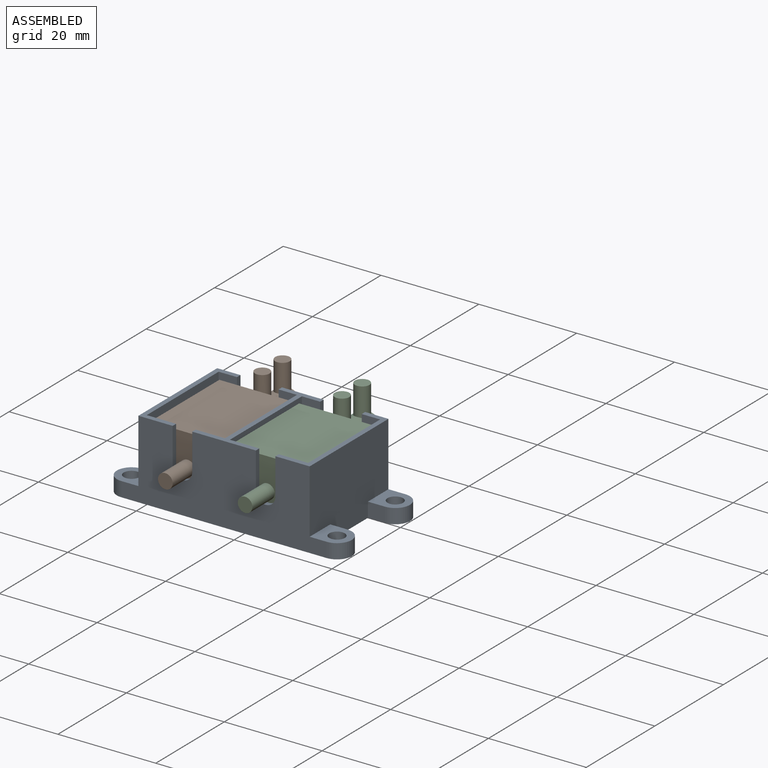
[diagram: assembled view]
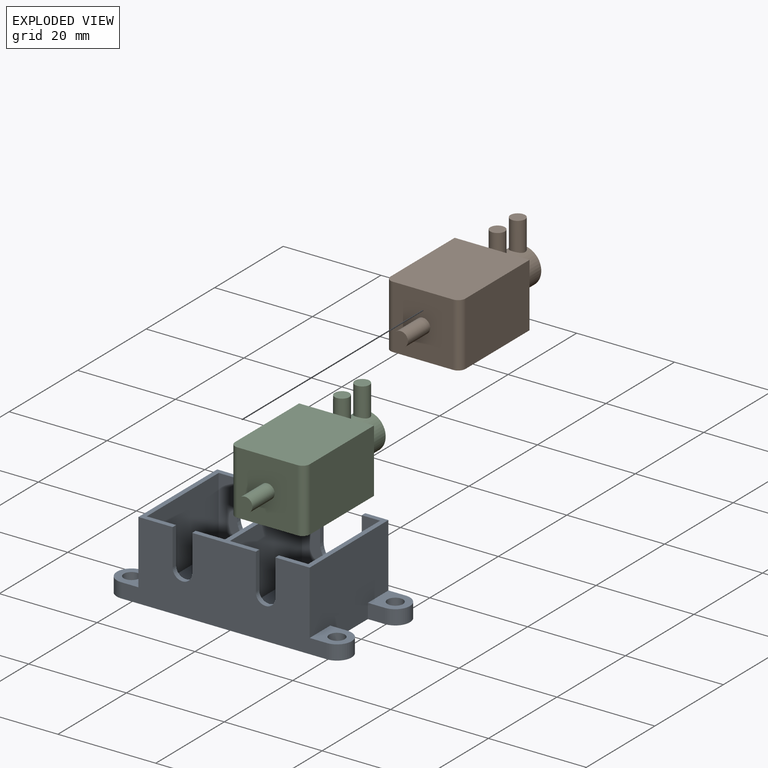
[diagram: exploded view]
GUIDED TOUR — MATED ASSEMBLY (Onshape document 6b5c977ac92050d050ab6953, AutoMate assembly 6b5c977ac92050d050ab6953_eeaec7f965c6bea017af9100_7a6b925c49f4ad419fed44dc_default)

This assembly has 3 components, labeled P0..P2 below (a component is one placed occurrence of a part; the same part can appear more than once), held together by 6 mates. A mate is a constraint between two components; its type names the relative motion it leaves free:
  PLANAR — leaves sliding in the plane through the listed point (normal = the listed direction) and rotation about that normal free.
Axis/direction vectors are unit vectors and 'through' points are millimeter coordinates, both in the assembly's world frame.

MATES
  1. PLANAR "Planar 5": P1 <-> P0, direction (0.000, -1.000, 0.000) through (-8.15, -10.50, 8.50) mm
  2. PLANAR "Planar 3": P2 <-> P0, direction (0.000, 0.000, -1.000) through (8.15, -0.37, 2.00) mm
  3. PLANAR "Planar 2": P1 <-> P0, direction (1.000, 0.000, 0.000) through (-0.50, 0.35, 8.50) mm
  4. PLANAR "Planar 6": P2 <-> P0, direction (0.000, -1.000, 0.000) through (8.15, -10.50, 8.50) mm
  5. PLANAR "Planar 1": P1 <-> P0, direction (0.000, 0.000, -1.000) through (-8.15, -0.37, 2.00) mm
  6. PLANAR "Planar 4": P2 <-> P0, direction (-1.000, 0.000, 0.000) through (0.50, 0.35, 8.50) mm

ASSEMBLY ORDER
  1. P2 — the base component [order verified]
  2. P1 [order verified]
  3. P0 [order verified]
Order-tag legend:
  [order verified] — this step's position reverses a verified removal order: the component was checked to insert without passing through the ones already placed.

Of the 3 components, 3 carry the full construction recipe — the FeatureScript program that regenerates the part's solid from scratch; the rest are supplied as boundary geometry only.
Each toured component is shown spotlighted twice — in the assembled view, then in the exploded view, where a leader line traces a displaced component back to its assembled socket (saturated green if recipe-attached, orange if geometry-only; every other component desaturated gray) — followed by its recipe or geometry summary and the mates that hold it.
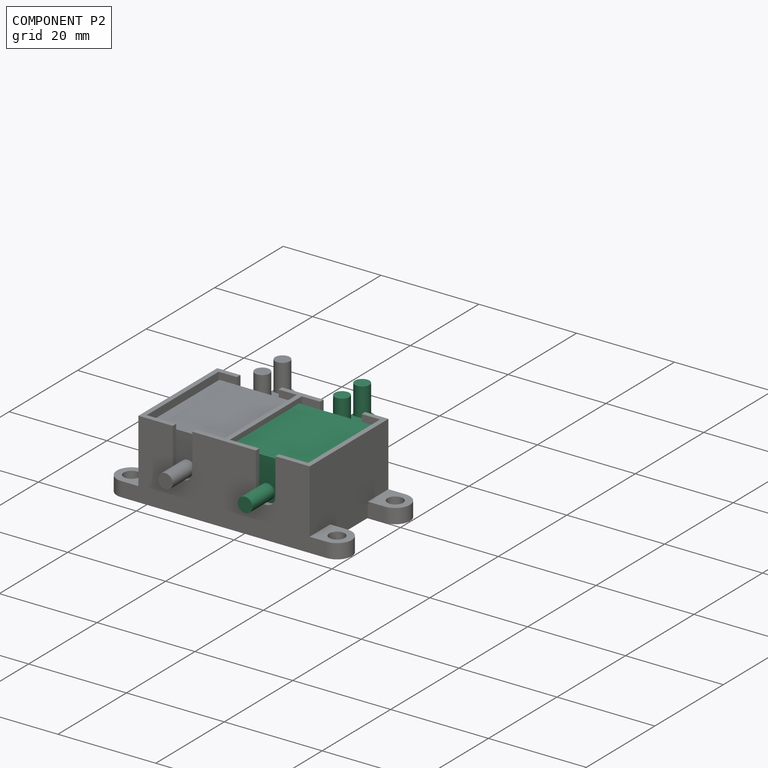
[diagram: component P2 — assembled]
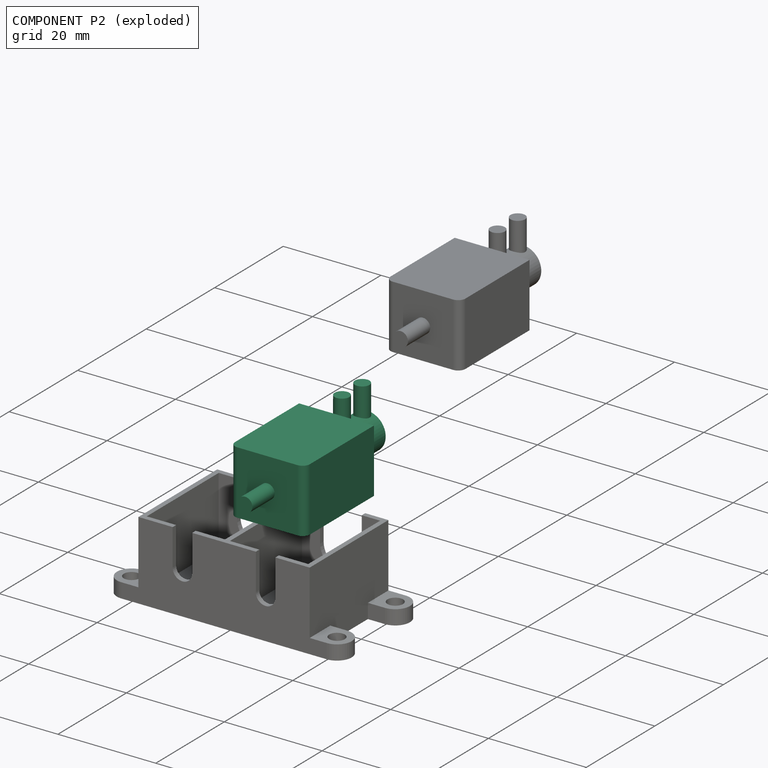
[diagram: component P2 — exploded]
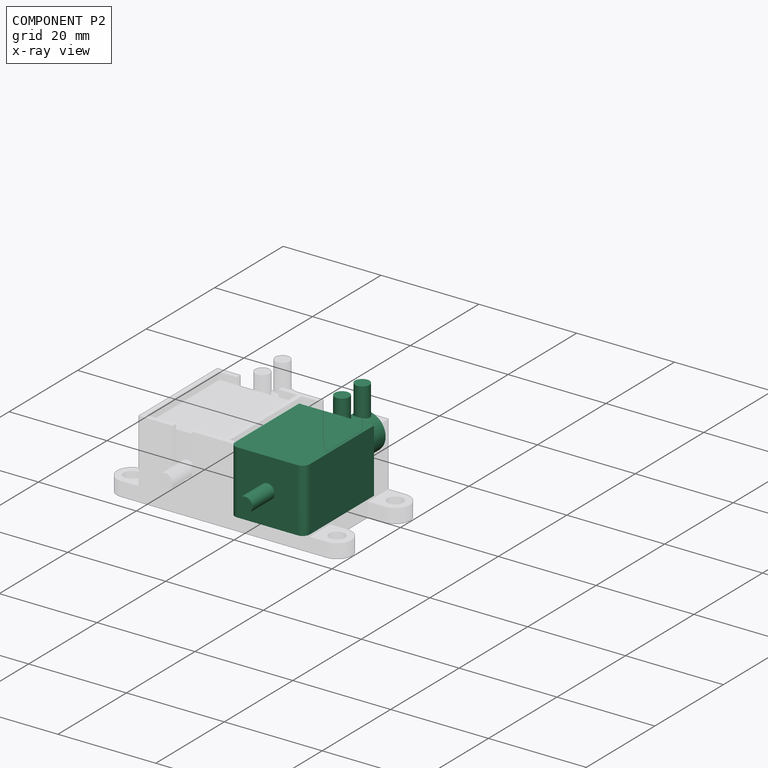
[diagram: component P2 — x-ray view]
COMPONENT P2 — same part as P1 (CADFS 00896327); its construction recipe is shown at P1.
Held by: PLANAR mate "Planar 3" to P0; PLANAR mate "Planar 6" to P0; PLANAR mate "Planar 4" to P0.
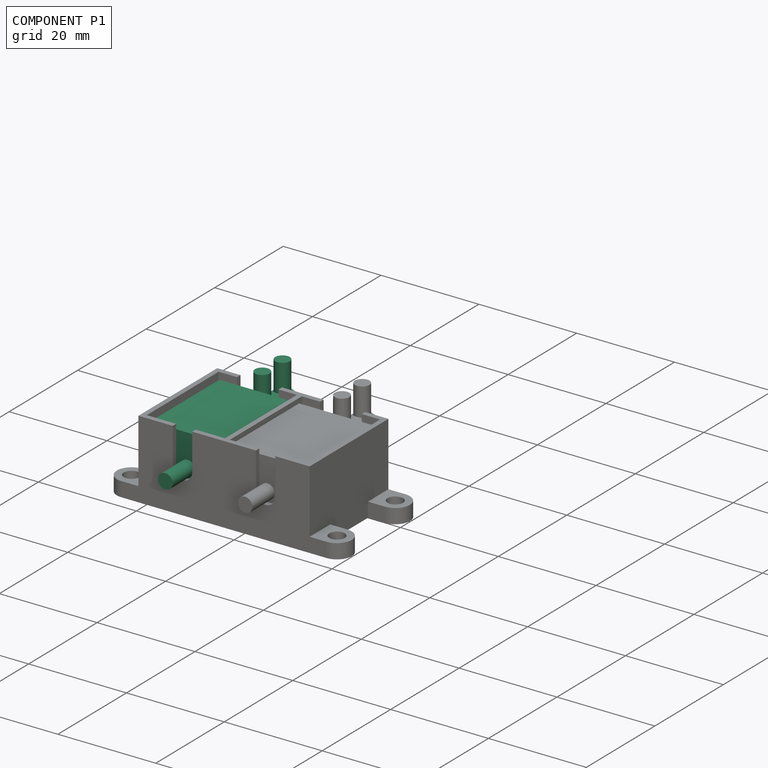
[diagram: component P1 — assembled]
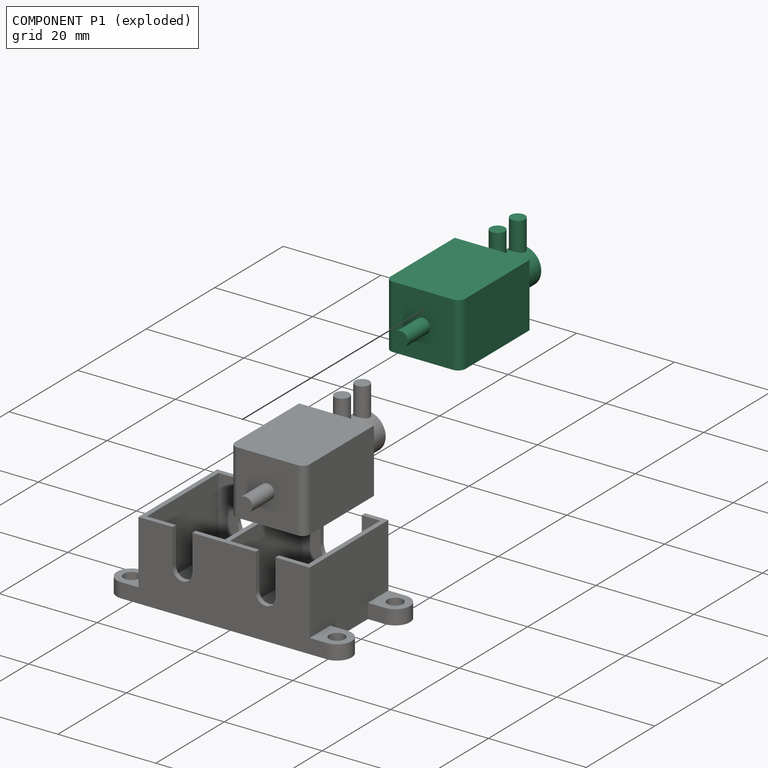
[diagram: component P1 — exploded]
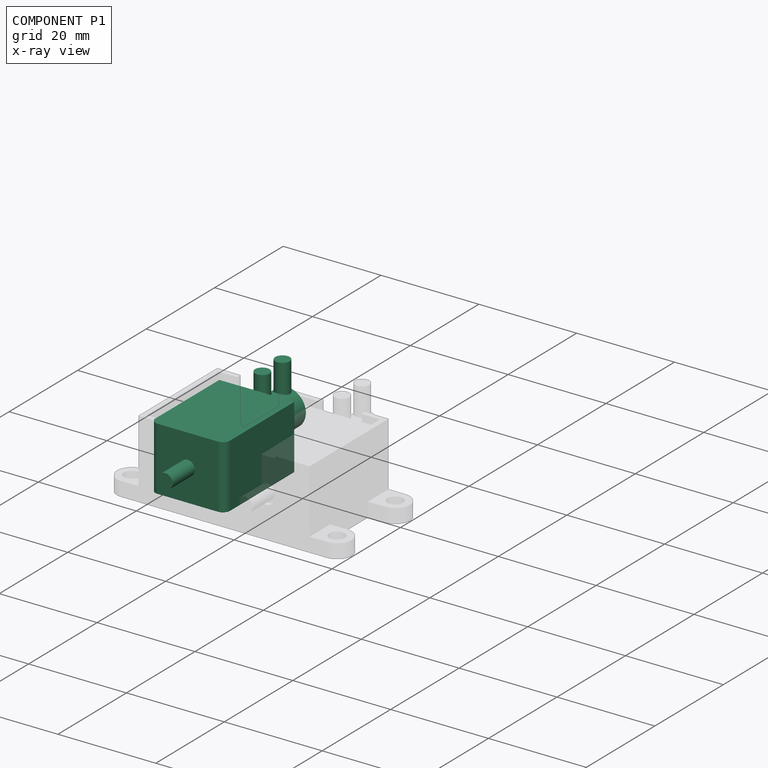
[diagram: component P1 — x-ray view]
COMPONENT P1 — recipe-attached (CADFS 00896327, mesh-verified: the recipe's output STEP matches this component's geometry to below the mesh-comparison resolution (tessellation chordal tolerance ~0.063 mm)).
Held by: PLANAR mate "Planar 5" to P0; PLANAR mate "Planar 2" to P0; PLANAR mate "Planar 1" to P0.
Construction recipe (FeatureScript — the CAD program that rebuilds this solid; sketch coordinates are in the units given by the * unit suffixes, e.g. mm):

FeatureScript 1511;
import(path : "onshape/std/geometry.fs", version : "1511.0");
import(path : "onshape/std/common.fs", version : "1511.0");
const mm = millimeter;
const VERTEX = EntityType.VERTEX;
const EDGE = EntityType.EDGE;
const FACE = EntityType.FACE;
const BODY = EntityType.BODY;
function v(x, y){return vector(x, y);}
function OD(order){return orderDisambiguation(order);}
function OSD(set){return originalSetDisambiguation(set);}
function TD(topology){return topologyDisambiguation(topology);}
function TDD(query){return trueDependencyDisambiguation(query);}
function sQuery(a, b, c) {return sketchEntityQuery(a, b, c);}

annotation { "Feature Type Name" : "Feature", "Feature Type Description" : "" }
export const myFeature = defineFeature(function(context is Context, id is Id, definition is map)
    precondition{}
    {
        {
            var Q0;
            Q0=qCreatedBy(makeId("Top.planeOp"),FACE);
            var sketch = newSketch(context, id + "F0", { "sketchPlane" : qUnion([Q0])});
            skLineSegment(sketch, "E0.bottom", {"start": v(-10.1, 7.65) * mm, "end": v(10.1, 7.65) * mm});
            skLineSegment(sketch, "E0.top", {"start": v(-10.1, -7.65) * mm, "end": v(10.1, -7.65) * mm});
            skLineSegment(sketch, "E0.left", {"start": v(-10.1, 7.65) * mm, "end": v(-10.1, -7.65) * mm});
            skLineSegment(sketch, "E0.right", {"start": v(10.1, 7.65) * mm, "end": v(10.1, -7.65) * mm});
            skSolve(sketch);
        }
        {
            var Q0;
            Q0 = qSketchRegion(id + "F0", true);
            extrude(context, id + "F1", {"entities" : qUnion([Q0]), "depth" : 13 * mm, "offsetDistance" : 25 * mm});
        }
        {
            var Q0;
            Q0=makeQuery(id+"F1.opExtrude","SWEPT_EDGE",EDGE,{"disambiguationData":[OSD([sQuery(id+"F0.wireOp",EDGE,"E0.top"),sQuery(id+"F0.wireOp",EDGE,"E0.right")])]});
            var Q1;
            Q1=makeQuery(id+"F1.opExtrude","SWEPT_EDGE",EDGE,{"disambiguationData":[OSD([sQuery(id+"F0.wireOp",EDGE,"E0.bottom"),sQuery(id+"F0.wireOp",EDGE,"E0.right")])]});
            fillet(context, id + "F2", {"entities" : qUnion([Q0, Q1]), "radius" : 1.5 * mm, "tangentPropagation" : true, "allowEdgeOverflow" : false});
        }
        {
            var Q0;
            Q0=makeQuery(id+"F1.opExtrude","SWEPT_FACE",FACE,{"disambiguationData":[OSD([sQuery(id+"F0.wireOp",EDGE,"E0.left")])]});
            var sketch = newSketch(context, id + "F3", { "sketchPlane" : qUnion([Q0])});
            skCircle(sketch, "E1", {"center": v(0, 6.5) * mm, "radius": 3.75 * mm});
            skSolve(sketch);
        }
        {
            var Q0;
            Q0 = qSketchRegion(id + "F3", true);
            extrude(context, id + "F4", {"entities" : qUnion([Q0]), "operationType" : NewBodyOperationType.ADD, "depth" : 9 * mm, "offsetDistance" : 25 * mm});
        }
        {
            var Q0;
            Q0=makeQuery(id+"F1.opExtrude","SWEPT_FACE",FACE,{"disambiguationData":[OSD([sQuery(id+"F0.wireOp",EDGE,"E0.right")])]});
            var sketch = newSketch(context, id + "F5", { "sketchPlane" : qUnion([Q0])});
            skCircle(sketch, "E2", {"center": v(0, 6.5) * mm, "radius": 1.5 * mm});
            skSolve(sketch);
        }
        {
            var Q0;
            Q0 = qSketchRegion(id + "F5", true);
            extrude(context, id + "F6", {"entities" : qUnion([Q0]), "operationType" : NewBodyOperationType.ADD, "depth" : 6.5 * mm, "offsetDistance" : 25 * mm});
        }
        {
            var Q0;
            Q0=qCreatedBy(makeId("Top.planeOp"),FACE);
            var sketch = newSketch(context, id + "F7", { "sketchPlane" : qUnion([Q0])});
            skCircle(sketch, "E3", {"center": v(-17.6, 0) * mm, "radius": 1.5 * mm});
            skCircle(sketch, "E4", {"center": v(-11.7, 0) * mm, "radius": 1.5 * mm});
            skSolve(sketch);
        }
        {
            var Q0;
            Q0 = qSketchRegion(id + "F7", true);
            extrude(context, id + "F8", {"entities" : qUnion([Q0]), "operationType" : NewBodyOperationType.ADD, "depth" : 5 * mm, "offsetDistance" : 25 * mm, "hasSecondDirection" : true, "secondDirectionOppositeDirection" : true, "secondDirectionDepth" : 3 * mm});
        }
    });
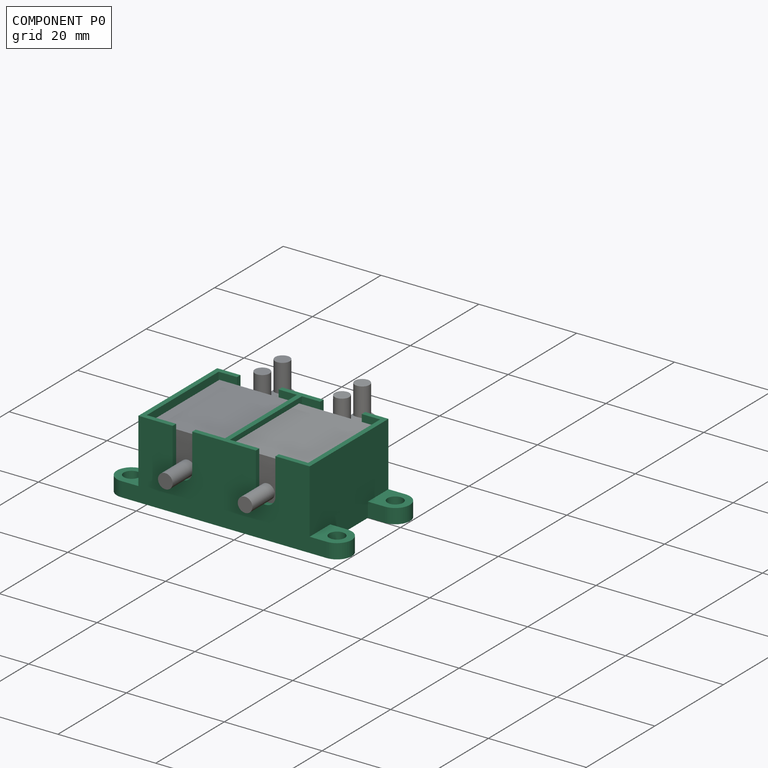
[diagram: component P0 — assembled]
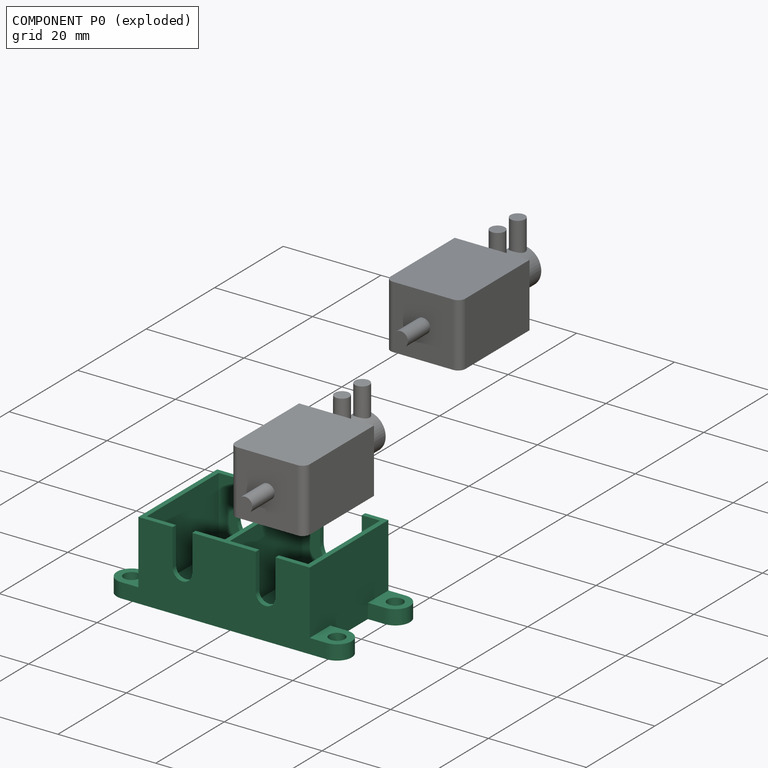
[diagram: component P0 — exploded]
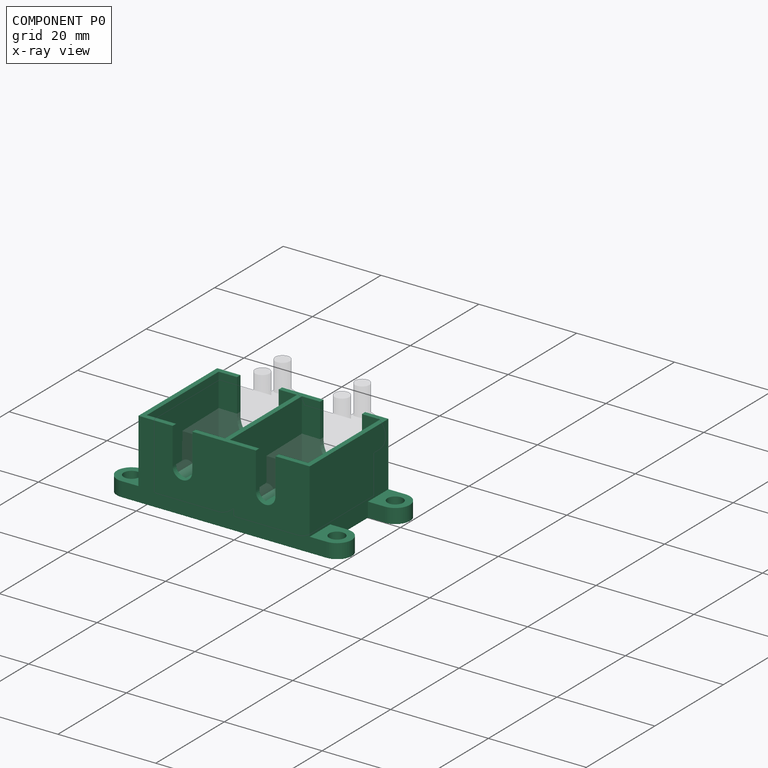
[diagram: component P0 — x-ray view]
COMPONENT P0 — recipe-attached (CADFS 00897104, mesh-verified: the recipe's output STEP matches this component's geometry to below the mesh-comparison resolution (tessellation chordal tolerance ~0.0833 mm)).
Held by: PLANAR mate "Planar 5" to P1; PLANAR mate "Planar 3" to P2; PLANAR mate "Planar 2" to P1; PLANAR mate "Planar 6" to P2; PLANAR mate "Planar 1" to P1; PLANAR mate "Planar 4" to P2.
Construction recipe (FeatureScript — the CAD program that rebuilds this solid; sketch coordinates are in the units given by the * unit suffixes, e.g. mm):

FeatureScript 1511;
import(path : "onshape/std/geometry.fs", version : "1511.0");
import(path : "onshape/std/common.fs", version : "1511.0");
const mm = millimeter;
const VERTEX = EntityType.VERTEX;
const EDGE = EntityType.EDGE;
const FACE = EntityType.FACE;
const BODY = EntityType.BODY;
function v(x, y){return vector(x, y);}
function OD(order){return orderDisambiguation(order);}
function OSD(set){return originalSetDisambiguation(set);}
function TD(topology){return topologyDisambiguation(topology);}
function TDD(query){return trueDependencyDisambiguation(query);}
function sQuery(a, b, c) {return sketchEntityQuery(a, b, c);}

annotation { "Feature Type Name" : "Feature", "Feature Type Description" : "" }
export const myFeature = defineFeature(function(context is Context, id is Id, definition is map)
    precondition{}
    {
        {
            var Q0;
            Q0=qCreatedBy(makeId("Top.planeOp"),FACE);
            var sketch = newSketch(context, id + "F0", { "sketchPlane" : qUnion([Q0])});
            skLineSegment(sketch, "E0.bottom", {"start": v(-17.5, 11.5) * mm, "end": v(17.5, 11.5) * mm});
            skLineSegment(sketch, "E0.top", {"start": v(-17.5, -11.5) * mm, "end": v(17.5, -11.5) * mm});
            skLineSegment(sketch, "E0.left", {"start": v(-17.5, 11.5) * mm, "end": v(-17.5, -11.5) * mm});
            skLineSegment(sketch, "E0.right", {"start": v(17.5, 11.5) * mm, "end": v(17.5, -11.5) * mm});
            skSolve(sketch);
        }
        {
            var Q0;
            Q0 = qSketchRegion(id + "F0", true);
            extrude(context, id + "F1", {"entities" : qUnion([Q0]), "depth" : 16 * mm, "offsetDistance" : 25 * mm});
        }
        {
            var Q0;
            Q0=makeQuery(id+"F1.opExtrude","CAP_FACE",FACE,{"disambiguationData":[OSD([sQuery(id+"F0.wireOp",EDGE,"E0.bottom"),sQuery(id+"F0.wireOp",EDGE,"E0.top"),sQuery(id+"F0.wireOp",EDGE,"E0.left"),sQuery(id+"F0.wireOp",EDGE,"E0.right")])],"isStart":false});
            var sketch = newSketch(context, id + "F2", { "sketchPlane" : qUnion([Q0])});
            skLineSegment(sketch, "E1.bottom", {"start": v(-16.5, 10.5) * mm, "end": v(-0.5, 10.5) * mm});
            skLineSegment(sketch, "E1.top", {"start": v(-16.5, -10.5) * mm, "end": v(-0.5, -10.5) * mm});
            skLineSegment(sketch, "E1.left", {"start": v(-16.5, 10.5) * mm, "end": v(-16.5, -10.5) * mm});
            skLineSegment(sketch, "E1.right", {"start": v(-0.5, 10.5) * mm, "end": v(-0.5, -10.5) * mm});
            skLineSegment(sketch, "E2.bottom", {"start": v(0.5, 10.5) * mm, "end": v(16.5, 10.5) * mm});
            skLineSegment(sketch, "E2.top", {"start": v(0.5, -10.5) * mm, "end": v(16.5, -10.5) * mm});
            skLineSegment(sketch, "E2.left", {"start": v(0.5, 10.5) * mm, "end": v(0.5, -10.5) * mm});
            skLineSegment(sketch, "E2.right", {"start": v(16.5, 10.5) * mm, "end": v(16.5, -10.5) * mm});
            skSolve(sketch);
        }
        {
            var Q0;
            Q0 = qSketchRegion(id + "F2", true);
            extrude(context, id + "F3", {"entities" : qUnion([Q0]), "operationType" : NewBodyOperationType.REMOVE, "oppositeDirection" : true, "depth" : 14 * mm, "offsetDistance" : 25 * mm});
        }
        {
            var Q0;
            Q0=makeQuery(id+"F1.opExtrude","SWEPT_FACE",FACE,{"disambiguationData":[OSD([sQuery(id+"F0.wireOp",EDGE,"E0.top")])]});
            var sketch = newSketch(context, id + "F4", { "sketchPlane" : qUnion([Q0])});
            skArc(sketch, "E3", {"start": v(-10.5, 8.5) * mm, "mid": v(-8.5, 6.5) * mm, "end": v(-6.5, 8.5) * mm});
            skArc(sketch, "E4", {"start": v(6.5, 8.5) * mm, "mid": v(8.5, 6.5) * mm, "end": v(10.5, 8.5) * mm});
            skLineSegment(sketch, "E5.top", {"start": v(-10.5, 16) * mm, "end": v(-6.5, 16) * mm});
            skLineSegment(sketch, "E5.left", {"start": v(-10.5, 8.5) * mm, "end": v(-10.5, 16) * mm});
            skLineSegment(sketch, "E5.right", {"start": v(-6.5, 8.5) * mm, "end": v(-6.5, 16) * mm});
            skLineSegment(sketch, "E6.top", {"start": v(6.5, 16) * mm, "end": v(10.5, 16) * mm});
            skLineSegment(sketch, "E6.left", {"start": v(6.5, 8.5) * mm, "end": v(6.5, 16) * mm});
            skLineSegment(sketch, "E6.right", {"start": v(10.5, 8.5) * mm, "end": v(10.5, 16) * mm});
            skSolve(sketch);
        }
        {
            var Q0;
            Q0 = qSketchRegion(id + "F4", true);
            extrude(context, id + "F5", {"entities" : qUnion([Q0]), "operationType" : NewBodyOperationType.REMOVE, "oppositeDirection" : true, "depth" : 25 * mm, "offsetDistance" : 25 * mm});
        }
        {
            var Q0;
            Q0=makeQuery(id+"F1.opExtrude","SWEPT_FACE",FACE,{"disambiguationData":[OSD([sQuery(id+"F0.wireOp",EDGE,"E0.bottom")])]});
            var sketch = newSketch(context, id + "F6", { "sketchPlane" : qUnion([Q0])});
            skArc(sketch, "E7", {"start": v(-12.75, 8.5) * mm, "mid": v(-8.5, 4.25) * mm, "end": v(-4.25, 8.5) * mm});
            skArc(sketch, "E8", {"start": v(4.25, 8.5) * mm, "mid": v(8.5, 4.25) * mm, "end": v(12.75, 8.5) * mm});
            skLineSegment(sketch, "E9", {"start": v(-12.75, 8.5) * mm, "end": v(-12.75, 16) * mm});
            skLineSegment(sketch, "E10", {"start": v(-4.25, 8.5) * mm, "end": v(-4.25, 16) * mm});
            skLineSegment(sketch, "E11", {"start": v(4.25, 8.5) * mm, "end": v(4.25, 16) * mm});
            skLineSegment(sketch, "E12", {"start": v(12.75, 8.5) * mm, "end": v(12.75, 16) * mm});
            skLineSegment(sketch, "E13", {"start": v(-12.75, 16) * mm, "end": v(-4.25, 16) * mm});
            skLineSegment(sketch, "E14", {"start": v(4.25, 16) * mm, "end": v(12.75, 16) * mm});
            skSolve(sketch);
        }
        {
            var Q0;
            Q0=makeQuery(id+"F6.imprint","IMPRINT",FACE,{"disambiguationData":[TD([[makeQuery(id+"F6.imprint","IMPRINT",EDGE,{"derivedFrom":sQuery(id+"F6.wireOp",EDGE,"E7")}),1.0]])]});
            var Q1;
            Q1=makeQuery(id+"F6.imprint","IMPRINT",FACE,{"disambiguationData":[TD([[makeQuery(id+"F6.imprint","IMPRINT",EDGE,{"derivedFrom":sQuery(id+"F6.wireOp",EDGE,"E8")}),1.0]])]});
            extrude(context, id + "F7", {"entities" : qUnion([Q0, Q1]), "operationType" : NewBodyOperationType.REMOVE, "oppositeDirection" : true, "depth" : 3 * mm, "offsetDistance" : 25 * mm});
        }
        {
            var Q0;
            Q0=makeQuery(id+"F1.opExtrude","SWEPT_FACE",FACE,{"disambiguationData":[OSD([sQuery(id+"F0.wireOp",EDGE,"E0.bottom")])]});
            var sketch = newSketch(context, id + "F8", { "sketchPlane" : qUnion([Q0])});
            skCircle(sketch, "E15", {"center": v(-8.5, 2) * mm, "radius": 1.38 * mm});
            skPoint(sketch, "E15.centerSnap0", {"position": v(-8.5, 4.25) * mm});
            skCircle(sketch, "E16", {"center": v(8.5, 2) * mm, "radius": 1.38 * mm});
            skPoint(sketch, "E16.centerSnap0", {"position": v(8.5, 4.25) * mm});
            skSolve(sketch);
        }
        {
            var Q0;
            Q0 = qSketchRegion(id + "F8", true);
            extrude(context, id + "F9", {"entities" : qUnion([Q0]), "operationType" : NewBodyOperationType.REMOVE, "oppositeDirection" : true, "depth" : 20 * mm, "offsetDistance" : 25 * mm});
        }
        {
            var Q0;
            Q0=makeQuery(id+"F9.boolean.opBoolean","INTERSECT",EDGE,{"disambiguationData":[OD(0.0)],"derivedFrom":[makeQuery(id+"F3.boolean.opBoolean","COPY",FACE,{"derivedFrom":makeQuery(id+"F3.opExtrude","CAP_FACE",FACE,{"disambiguationData":[OSD([sQuery(id+"F2.wireOp",EDGE,"E2.bottom"),sQuery(id+"F2.wireOp",EDGE,"E2.top"),sQuery(id+"F2.wireOp",EDGE,"E2.left"),sQuery(id+"F2.wireOp",EDGE,"E2.right")])],"isStart":false})}),makeQuery(id+"F9.opExtrude","SWEPT_FACE",FACE,{"disambiguationData":[OSD([sQuery(id+"F8.wireOp",EDGE,"E15")])]})]});
            var Q1;
            Q1=makeQuery(id+"F9.boolean.opBoolean","INTERSECT",EDGE,{"disambiguationData":[OD(1.0)],"derivedFrom":[makeQuery(id+"F3.boolean.opBoolean","COPY",FACE,{"derivedFrom":makeQuery(id+"F3.opExtrude","CAP_FACE",FACE,{"disambiguationData":[OSD([sQuery(id+"F2.wireOp",EDGE,"E2.bottom"),sQuery(id+"F2.wireOp",EDGE,"E2.top"),sQuery(id+"F2.wireOp",EDGE,"E2.left"),sQuery(id+"F2.wireOp",EDGE,"E2.right")])],"isStart":false})}),makeQuery(id+"F9.opExtrude","SWEPT_FACE",FACE,{"disambiguationData":[OSD([sQuery(id+"F8.wireOp",EDGE,"E15")])]})]});
            var Q2;
            Q2=makeQuery(id+"F9.boolean.opBoolean","INTERSECT",EDGE,{"disambiguationData":[OD(1.0)],"derivedFrom":[makeQuery(id+"F3.boolean.opBoolean","COPY",FACE,{"derivedFrom":makeQuery(id+"F3.opExtrude","CAP_FACE",FACE,{"disambiguationData":[OSD([sQuery(id+"F2.wireOp",EDGE,"E1.bottom"),sQuery(id+"F2.wireOp",EDGE,"E1.top"),sQuery(id+"F2.wireOp",EDGE,"E1.left"),sQuery(id+"F2.wireOp",EDGE,"E1.right")])],"isStart":false})}),makeQuery(id+"F9.opExtrude","SWEPT_FACE",FACE,{"disambiguationData":[OSD([sQuery(id+"F8.wireOp",EDGE,"E16")])]})]});
            var Q3;
            Q3=makeQuery(id+"F9.boolean.opBoolean","INTERSECT",EDGE,{"disambiguationData":[OD(0.0)],"derivedFrom":[makeQuery(id+"F3.boolean.opBoolean","COPY",FACE,{"derivedFrom":makeQuery(id+"F3.opExtrude","CAP_FACE",FACE,{"disambiguationData":[OSD([sQuery(id+"F2.wireOp",EDGE,"E1.bottom"),sQuery(id+"F2.wireOp",EDGE,"E1.top"),sQuery(id+"F2.wireOp",EDGE,"E1.left"),sQuery(id+"F2.wireOp",EDGE,"E1.right")])],"isStart":false})}),makeQuery(id+"F9.opExtrude","SWEPT_FACE",FACE,{"disambiguationData":[OSD([sQuery(id+"F8.wireOp",EDGE,"E16")])]})]});
            fillet(context, id + "F10", {"entities" : qUnion([Q0, Q1, Q2, Q3]), "radius" : 1 * mm, "tangentPropagation" : true, "allowEdgeOverflow" : false});
        }
        {
            var Q0;
            Q0=qCreatedBy(makeId("Top.planeOp"),FACE);
            var sketch = newSketch(context, id + "F11", { "sketchPlane" : qUnion([Q0])});
            skLineSegment(sketch, "E17.bottom", {"start": v(-17.5, 11.5) * mm, "end": v(-21, 11.5) * mm});
            skLineSegment(sketch, "E17.top", {"start": v(-17.5, 5.5) * mm, "end": v(-21, 5.5) * mm});
            skLineSegment(sketch, "E17.left", {"start": v(-17.5, 11.5) * mm, "end": v(-17.5, 5.5) * mm});
            skLineSegment(sketch, "E17.right", {"start": v(-21, 11.5) * mm, "end": v(-21, 5.5) * mm, "construction": true});
            skLineSegment(sketch, "E18.bottom", {"start": v(17.5, 11.5) * mm, "end": v(21, 11.5) * mm});
            skLineSegment(sketch, "E18.top", {"start": v(17.5, 5.5) * mm, "end": v(21, 5.5) * mm});
            skLineSegment(sketch, "E18.left", {"start": v(17.5, 11.5) * mm, "end": v(17.5, 5.5) * mm});
            skLineSegment(sketch, "E18.right", {"start": v(21, 11.5) * mm, "end": v(21, 5.5) * mm, "construction": true});
            skLineSegment(sketch, "E19.bottom", {"start": v(-17.5, -11.5) * mm, "end": v(-21, -11.5) * mm});
            skLineSegment(sketch, "E19.top", {"start": v(-17.5, -5.5) * mm, "end": v(-21, -5.5) * mm});
            skLineSegment(sketch, "E19.left", {"start": v(-17.5, -11.5) * mm, "end": v(-17.5, -5.5) * mm});
            skLineSegment(sketch, "E19.right", {"start": v(-21, -11.5) * mm, "end": v(-21, -5.5) * mm, "construction": true});
            skArc(sketch, "E20", {"start": v(21, 5.5) * mm, "mid": v(24, 8.5) * mm, "end": v(21, 11.5) * mm});
            skArc(sketch, "E21", {"start": v(-21, 11.5) * mm, "mid": v(-24, 8.5) * mm, "end": v(-21, 5.5) * mm});
            skArc(sketch, "E22", {"start": v(-21, -5.5) * mm, "mid": v(-24, -8.5) * mm, "end": v(-21, -11.5) * mm});
            skLineSegment(sketch, "E23.bottom", {"start": v(17.5, -5.5) * mm, "end": v(21, -5.5) * mm});
            skLineSegment(sketch, "E23.top", {"start": v(17.5, -11.5) * mm, "end": v(21, -11.5) * mm});
            skLineSegment(sketch, "E23.left", {"start": v(17.5, -5.5) * mm, "end": v(17.5, -11.5) * mm});
            skLineSegment(sketch, "E23.right", {"start": v(21, -5.5) * mm, "end": v(21, -11.5) * mm, "construction": true});
            skArc(sketch, "E24", {"start": v(21, -11.5) * mm, "mid": v(24, -8.5) * mm, "end": v(21, -5.5) * mm});
            skCircle(sketch, "E25", {"center": v(21, 8.5) * mm, "radius": 1.6 * mm});
            skCircle(sketch, "E26", {"center": v(-21, 8.5) * mm, "radius": 1.6 * mm});
            skCircle(sketch, "E27", {"center": v(21, -8.5) * mm, "radius": 1.6 * mm});
            skCircle(sketch, "E28", {"center": v(-21, -8.5) * mm, "radius": 1.6 * mm});
            skSolve(sketch);
        }
        {
            var Q0;
            Q0 = qSketchRegion(id + "F11", true);
            extrude(context, id + "F12", {"entities" : qUnion([Q0]), "operationType" : NewBodyOperationType.ADD, "depth" : 3 * mm, "offsetDistance" : 25 * mm});
        }
    });
PROVENANCE & LICENSES
Assembly (occurrences, transforms, mates, per-part STEP geometry): AutoMate dataset, Zenodo record 7776208, CC0.
Construction recipes: CADFS (HuggingFace VladPyatov/CADFS, CC-BY-4.0, layered over the ABC dataset), FeatureScript reconstruction programs keyed by ABC model id.
Join: ABC meta listings map ABC model id -> Onshape documentId; within a shared document, parts are matched by geometric signature (bounding-box dims + volume at 0.1% relative tolerance, exact B-rep face/solid counts).
Verification: 3 of this assembly's 3 components carry a recipe attachment, and every attachment is mesh-verified: the CADFS STEP and the AutoMate member STEP were compared as meshes in their shared local frame (symmetric sampled-point-to-mesh distance); worst across the 3 attachments: below the mesh-comparison resolution (tessellation chordal tolerance ~0.0833 mm) on a 56 mm part.
Renders: orthographic iso camera (az 35 / el 25); the floor grid conveys scale (grid pitch printed in each image; no ruler). In the exploded view each component is displaced by its stored offset vector: the offsets alone carry the explosion direction (mate normal/axis signs are not orientation cues and do not encode it), and separation distances are assigned per mate-chain, not proportionally to assembly-order depth.
